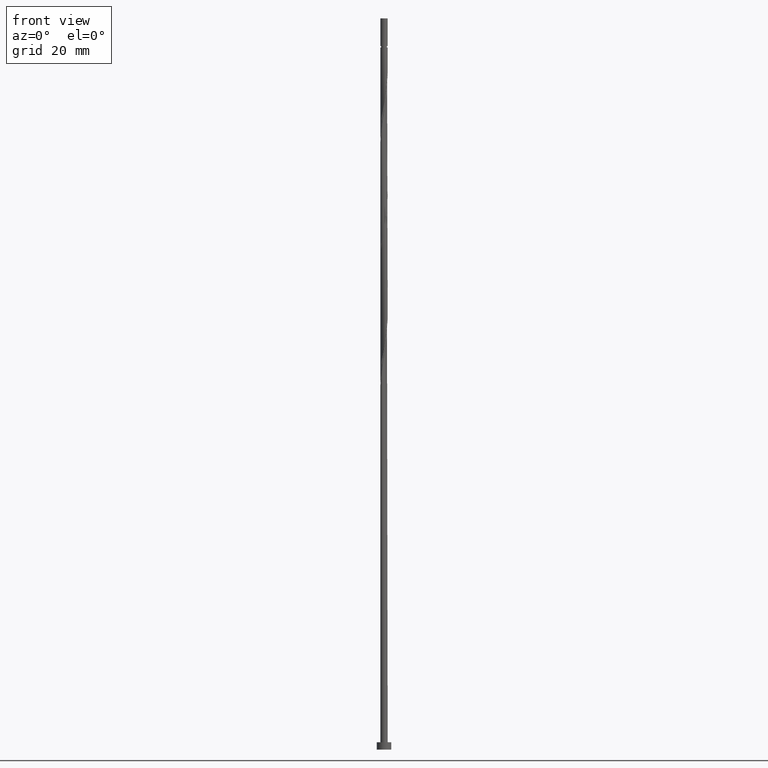
[diagram: clean part render]
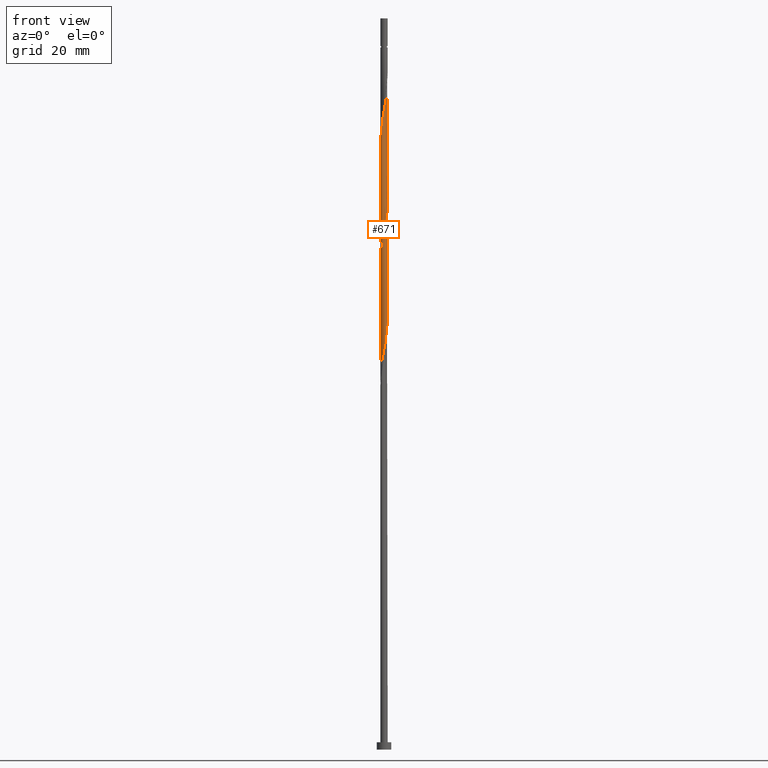
[diagram: same view with one face highlighted and labeled with its STEP entity id]
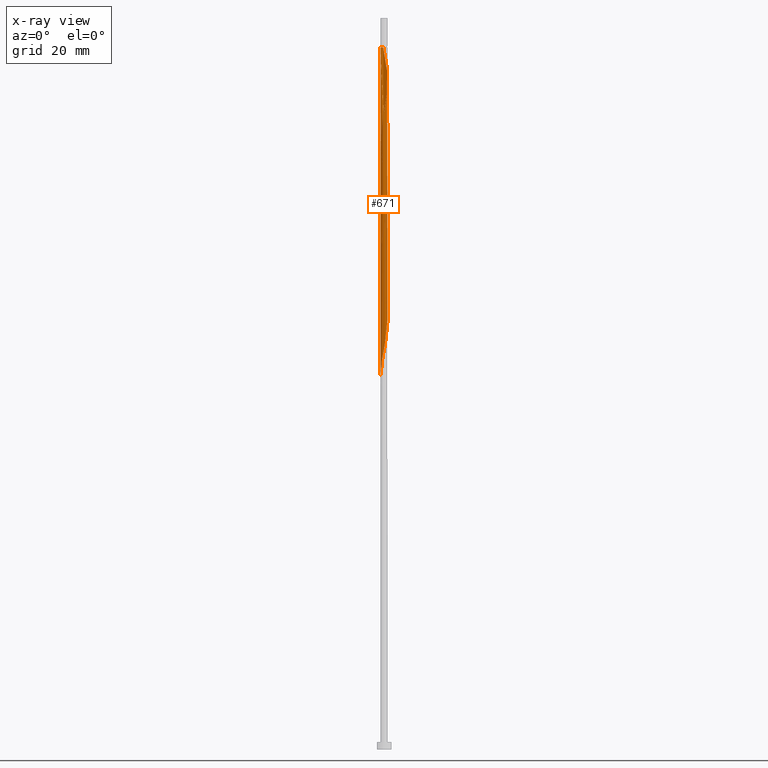
[diagram: x-ray of the same camera — body ghosted, the highlighted face saturated]
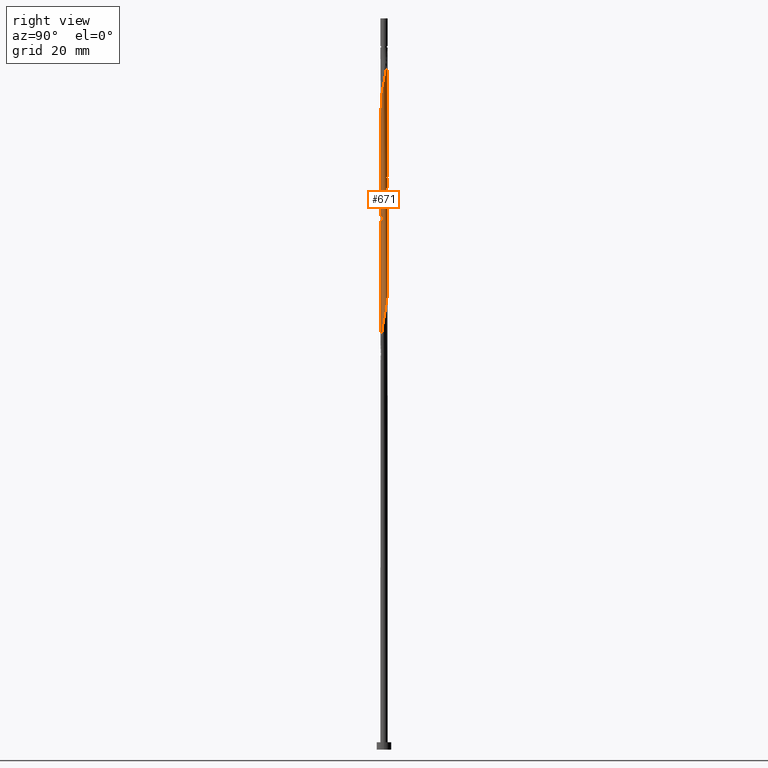
[diagram: same view with one face highlighted and labeled with its STEP entity id]
A machine part, front view. The second image highlights one B-rep face of the part: STEP entity #671.
The next image is the same camera in x-ray: the body ghosted, the highlighted face saturated — about 0% of this face is hidden behind the body in this view.
A second angle (right view) of the same face is appended — the face is thin or edge-on in the first view.
In plain terms, the highlighted cylindrical surface (bore or boss wall) has radius 1 mm, axis along (-0, -0, -1).
Its self-contained STEP definition (entity closure, byte-faithful):
#2 = CARTESIAN_POINT ( 'NONE',  ( -1.000000000000001554, -0.03074195165767192039, 101.5962653632798691 ) ) ;
#11 = CARTESIAN_POINT ( 'NONE',  ( 0.3176631206038582622, -0.9482036394194137685, 111.4806461311527670 ) ) ;
#15 = EDGE_CURVE ( 'NONE', #335, #730, #1408, .T. ) ;
#18 = CARTESIAN_POINT ( 'NONE',  ( -0.6623368793961430523, -0.7492061519980881545, 139.2584239089305242 ) ) ;
#35 = CARTESIAN_POINT ( 'NONE',  ( -0.7492061519980882656, -0.6623368793961422751, 169.8139794644861524 ) ) ;
#41 = CARTESIAN_POINT ( 'NONE',  ( 0.9063824962005089247, -0.4424964979548830502, 180.2306461311527812 ) ) ;
#42 = ORIENTED_EDGE ( 'NONE', *, *, #1500, .T. ) ;
#49 = DIRECTION ( 'NONE',  ( -1.000000000000000000, 0.000000000000000000, 0.000000000000000000 ) ) ;
#57 = CARTESIAN_POINT ( 'NONE',  ( -0.9800000000000015365, -0.1989974874213253087, 167.0362016867083526 ) ) ;
#84 = CARTESIAN_POINT ( 'NONE',  ( 0.9800000000000013145, -0.1989974874213255307, 150.3695350200416385 ) ) ;
#101 = VECTOR ( 'NONE', #841, 1000.000000000000000 ) ;
#109 =( BOUNDED_CURVE ( )  B_SPLINE_CURVE ( 2, ( #306, #1435, #57, #679, #1071, #417, #35, #1292, #814, #1558, #433, #794, #167, #174, #791, #1324, #653, #404, #1200, #646, #1045, #41, #1542, #412, #921, #534, #929, #1305, #180, #541, #1467, #1221, #695, #322, #1459, #1105, #1597, #1229, #1352 ),
 .UNSPECIFIED., .F., .T. ) 
 B_SPLINE_CURVE_WITH_KNOTS ( ( 3, 2, 2, 2, 2, 2, 2, 2, 2, 2, 2, 2, 2, 2, 2, 2, 2, 2, 2, 3 ),
 ( 0.5545317669814462391, 0.5625000000000000000, 0.5729166666666667407, 0.5833333333333332593, 0.5937500000000000000, 0.6041666666666667407, 0.6145833333333331483, 0.6249999999999998890, 0.6354166666666666297, 0.6458333333333331483, 0.6562499999999998890, 0.6666666666666666297, 0.6770833333333331483, 0.6874999999999998890, 0.6979166666666665186, 0.7083333333333330373, 0.7187499999999997780, 0.7291666666666665186, 0.7395833333333330373, 0.7499999999999997780 ),
 .UNSPECIFIED. ) 
 CURVE ( )  GEOMETRIC_REPRESENTATION_ITEM ( )  RATIONAL_B_SPLINE_CURVE ( ( 0.9062941362546808044, 0.9031415850403849976, 0.9090909090909604640, 0.9013135103398787207, 0.9090909090909604640, 0.9013135103398787207, 0.9090909090909604640, 0.9013135103398787207, 0.9090909090909604640, 0.9013135103398787207, 0.9090909090909604640, 0.9013135103398787207, 0.9090909090909604640, 0.9013135103398787207, 0.9090909090909604640, 0.9013135103398787207, 0.9090909090909604640, 0.9013135103398787207, 0.9090909090909604640, 0.9013135103398787207, 0.9090909090909604640, 0.9013135103398787207, 0.9090909090909604640, 0.9013135103398787207, 0.9090909090909604640, 0.9013135103398787207, 0.9090909090909604640, 0.9013135103398787207, 0.9090909090909604640, 0.9013135103398787207, 0.9090909090909604640, 0.9013135103398787207, 0.9090909090909604640, 0.9013135103398787207, 0.9090909090909604640, 0.9013135103398787207, 0.9090909090909604640, 0.9013135103398789427, 0.9090909090909602419 ) ) 
 REPRESENTATION_ITEM ( '' )  );
#110 = CARTESIAN_POINT ( 'NONE',  ( -1.000000000000001332, 2.168298744324822856E-16, 168.0997683419184057 ) ) ;
#122 = CARTESIAN_POINT ( 'NONE',  ( -0.4458594766673631415, -0.8951029700910995146, 107.3139794644861098 ) ) ;
#132 = CARTESIAN_POINT ( 'NONE',  ( 0.4458594766673636411, 0.8951029700910995146, 123.9806461311527670 ) ) ;
#141 = CARTESIAN_POINT ( 'NONE',  ( -0.7609717405145335345, -0.6620078475813440111, 138.5639794644861809 ) ) ;
#145 = CARTESIAN_POINT ( 'NONE',  ( 0.9482036394194139906, 0.3176631206038579291, 153.1473127978194384 ) ) ;
#150 = CARTESIAN_POINT ( 'NONE',  ( -1.000000000000001332, -8.448888210644999734E-16, 101.4331016752517201 ) ) ;
#161 = CARTESIAN_POINT ( 'NONE',  ( 1.000000000000001554, 5.981513777447786236E-16, 151.4331016752516916 ) ) ;
#166 = CARTESIAN_POINT ( 'NONE',  ( -0.1928297432528343625, 0.9900247826383178351, 160.7862016867082957 ) ) ;
#167 = CARTESIAN_POINT ( 'NONE',  ( -0.06142585173357875683, -0.9981116494354761448, 173.9806461311527812 ) ) ;
#171 = EDGE_CURVE ( 'NONE', #875, #1306, #109, .T. ) ;
#174 = CARTESIAN_POINT ( 'NONE',  ( 0.06997803978567683492, -1.006198516232634566, 174.6750905755972099 ) ) ;
#180 = CARTESIAN_POINT ( 'NONE',  ( 0.8951029700910999587, 0.4458594766673623089, 185.0917572422638671 ) ) ;
#183 = CYLINDRICAL_SURFACE ( 'NONE', #464, 1.000000000000000000 ) ;
#184 = CARTESIAN_POINT ( 'NONE',  ( -0.4424964979548827726, 0.9063824962005097019, 162.1750905755971814 ) ) ;
#187 = DIRECTION ( 'NONE',  ( -0.000000000000000000, -0.000000000000000000, -1.000000000000000000 ) ) ;
#196 = CARTESIAN_POINT ( 'NONE',  ( 0.5522521727681131143, -0.8336771183575214517, 146.2028683533750097 ) ) ;
#210 = ORIENTED_EDGE ( 'NONE', *, *, #15, .F. ) ;
#214 = CARTESIAN_POINT ( 'NONE',  ( 0.4424964979548826616, -0.9063824962005099239, 145.5084239089305527 ) ) ;
#237 = CARTESIAN_POINT ( 'NONE',  ( -0.4424964979548827726, 0.9063824962005097019, 128.8417572422638955 ) ) ;
#246 = CARTESIAN_POINT ( 'NONE',  ( 0.8336771183575214517, 0.5522521727681133363, 121.2028683533749955 ) ) ;
#253 = CARTESIAN_POINT ( 'NONE',  ( 0.8364044564148321870, -0.5637020182777526811, 114.9528683533749813 ) ) ;
#262 = CARTESIAN_POINT ( 'NONE',  ( -0.6623368793961430523, -0.7492061519980881545, 105.9250905755972099 ) ) ;
#269 = CARTESIAN_POINT ( 'NONE',  ( -0.9482036394194137685, -0.3176631206038584843, 103.1473127978194384 ) ) ;
#271 =( BOUNDED_CURVE ( )  B_SPLINE_CURVE ( 2, ( #719, #451, #84, #443, #1345, #952, #315, #1330, #196, #214, #1089, #457, #965, #1507, #1003, #483, #878, #742, #18, #141, #622, #499, #1132, #374, #1029, #516, #990, #1020, #605, #1497, #754, #1517, #509, #237, #904, #1612, #1012, #775, #597, #492, #132, #1525, #366, #386, #246, #895, #885, #1151, #615, #1250, #1490, #1389, #1282, #253, #1268, #396, #729, #1409, #11, #1125, #1401, #1381, #872, #358, #122, #1372, #262, #763, #1142, #1275, #269, #1623, #1260, #2, #150 ),
 .UNSPECIFIED., .F., .T. ) 
 B_SPLINE_CURVE_WITH_KNOTS ( ( 3, 2, 2, 2, 2, 2, 2, 2, 2, 2, 2, 2, 2, 2, 2, 2, 2, 2, 2, 2, 2, 2, 2, 2, 2, 2, 2, 2, 2, 2, 2, 2, 2, 2, 2, 2, 2, 3 ),
 ( 0.5545317669814464612, 0.5625000000000000000, 0.5729166666666666297, 0.5833333333333333703, 0.5937500000000000000, 0.6041666666666666297, 0.6145833333333333703, 0.6250000000000000000, 0.6354166666666666297, 0.6458333333333333703, 0.6562500000000000000, 0.6666666666666666297, 0.6770833333333333703, 0.6875000000000000000, 0.6979166666666666297, 0.7083333333333333703, 0.7187500000000000000, 0.7291666666666666297, 0.7395833333333333703, 0.7500000000000000000, 0.7604166666666666297, 0.7708333333333333703, 0.7812500000000000000, 0.7916666666666666297, 0.8020833333333333703, 0.8125000000000000000, 0.8229166666666666297, 0.8333333333333333703, 0.8437500000000000000, 0.8541666666666666297, 0.8645833333333333703, 0.8750000000000000000, 0.8854166666666666297, 0.8958333333333333703, 0.9062500000000000000, 0.9166666666666666297, 0.9270833333333333703, 0.9295317669814463502 ),
 .UNSPECIFIED. ) 
 CURVE ( )  GEOMETRIC_REPRESENTATION_ITEM ( )  RATIONAL_B_SPLINE_CURVE ( ( 0.9062941362546816926, 0.9031415850403861079, 0.9090909090909616852, 0.9013135103398798309, 0.9090909090909616852, 0.9013135103398798309, 0.9090909090909616852, 0.9013135103398798309, 0.9090909090909616852, 0.9013135103398798309, 0.9090909090909616852, 0.9013135103398798309, 0.9090909090909616852, 0.9013135103398798309, 0.9090909090909616852, 0.9013135103398798309, 0.9090909090909616852, 0.9013135103398798309, 0.9090909090909616852, 0.9013135103398798309, 0.9090909090909616852, 0.9013135103398798309, 0.9090909090909616852, 0.9013135103398798309, 0.9090909090909616852, 0.9013135103398798309, 0.9090909090909616852, 0.9013135103398798309, 0.9090909090909616852, 0.9013135103398798309, 0.9090909090909616852, 0.9013135103398798309, 0.9090909090909616852, 0.9013135103398798309, 0.9090909090909616852, 0.9013135103398798309, 0.9090909090909616852, 0.9013135103398798309, 0.9090909090909616852, 0.9013135103398798309, 0.9090909090909616852, 0.9013135103398798309, 0.9090909090909616852, 0.9013135103398798309, 0.9090909090909616852, 0.9013135103398798309, 0.9090909090909616852, 0.9013135103398798309, 0.9090909090909616852, 0.9013135103398798309, 0.9090909090909616852, 0.9013135103398798309, 0.9090909090909616852, 0.9013135103398798309, 0.9090909090909616852, 0.9013135103398798309, 0.9090909090909616852, 0.9013135103398798309, 0.9090909090909616852, 0.9013135103398798309, 0.9090909090909616852, 0.9013135103398798309, 0.9090909090909616852, 0.9013135103398798309, 0.9090909090909616852, 0.9013135103398798309, 0.9090909090909616852, 0.9013135103398798309, 0.9090909090909616852, 0.9013135103398798309, 0.9090909090909616852, 0.9013135103398798309, 0.9090909090909616852, 0.9072628343904552972, 0.9062941362546818036 ) ) 
 REPRESENTATION_ITEM ( '' )  );
#272 = CARTESIAN_POINT ( 'NONE',  ( 0.7609717405145336455, 0.6620078475813440111, 155.2306461311527812 ) ) ;
#285 = FACE_OUTER_BOUND ( 'NONE', #1298, .T. ) ;
#290 = CARTESIAN_POINT ( 'NONE',  ( -0.8951029700910995146, 0.4458594766673630305, 165.6473127978194668 ) ) ;
#306 = CARTESIAN_POINT ( 'NONE',  ( -1.000000000000001110, 8.598426055081204793E-17, 165.9726350314982426 ) ) ;
#313 = CARTESIAN_POINT ( 'NONE',  ( -0.6620078475813443442, 0.7609717405145332014, 163.5639794644860956 ) ) ;
#315 = CARTESIAN_POINT ( 'NONE',  ( 0.7492061519980881545, -0.6623368793961431633, 147.5917572422638671 ) ) ;
#322 = CARTESIAN_POINT ( 'NONE',  ( 0.4424964979548831057, 0.9063824962005089247, 188.5639794644860388 ) ) ;
#331 = CARTESIAN_POINT ( 'NONE',  ( 0.5637020182777527921, 0.8364044564148321870, 156.6195350200416385 ) ) ;
#335 = VERTEX_POINT ( 'NONE', #110 ) ;
#353 = VERTEX_POINT ( 'NONE', #863 ) ;
#358 = CARTESIAN_POINT ( 'NONE',  ( -0.3280169350569739906, -0.9538014837673675084, 108.0084239089305527 ) ) ;
#366 = CARTESIAN_POINT ( 'NONE',  ( 0.6623368793961431633, 0.7492061519980880435, 122.5917572422638671 ) ) ;
#374 = CARTESIAN_POINT ( 'NONE',  ( -0.9900247826383180572, -0.1928297432528340571, 135.7862016867083241 ) ) ;
#382 = CARTESIAN_POINT ( 'NONE',  ( 0.9900247826383180572, 0.1928297432528337241, 152.4528683533749813 ) ) ;
#386 = CARTESIAN_POINT ( 'NONE',  ( 0.7609717405145336455, 0.6620078475813440111, 121.8973127978194526 ) ) ;
#387 = CIRCLE ( 'NONE', #1310, 0.9999999999999887867 ) ;
#396 = CARTESIAN_POINT ( 'NONE',  ( 0.6620078475813440111, -0.7609717405145335345, 113.5639794644861098 ) ) ;
#404 = CARTESIAN_POINT ( 'NONE',  ( 0.5637020182777515709, -0.8364044564148324090, 177.4528683533749813 ) ) ;
#412 = CARTESIAN_POINT ( 'NONE',  ( 0.9900247826383173910, -0.1928297432528348065, 181.6195350200416669 ) ) ;
#417 = CARTESIAN_POINT ( 'NONE',  ( -0.8364044564148321870, -0.5637020182777517929, 169.1195350200416669 ) ) ;
#422 = CARTESIAN_POINT ( 'NONE',  ( 0.000000000000000000, 0.000000000000000000, 200.0000000000000000 ) ) ;
#433 = CARTESIAN_POINT ( 'NONE',  ( -0.3176631206038588728, -0.9482036394194134354, 172.5917572422639239 ) ) ;
#443 = CARTESIAN_POINT ( 'NONE',  ( 0.9538014837673671753, -0.3280169350569742681, 149.6750905755972099 ) ) ;
#451 = CARTESIAN_POINT ( 'NONE',  ( 1.000000000000001110, -0.1005037815259244849, 150.8996753060624769 ) ) ;
#457 = CARTESIAN_POINT ( 'NONE',  ( 0.1928297432528337796, -0.9900247826383180572, 144.1195350200416669 ) ) ;
#464 = AXIS2_PLACEMENT_3D ( 'NONE', #422, #911, #49 ) ;
#465 = CARTESIAN_POINT ( 'NONE',  ( -1.000000000000001110, 8.598426055081204793E-17, 165.9726350314982426 ) ) ;
#476 = ORIENTED_EDGE ( 'NONE', *, *, #556, .F. ) ;
#483 = CARTESIAN_POINT ( 'NONE',  ( -0.3280169350569739906, -0.9538014837673675084, 141.3417572422638955 ) ) ;
#492 = CARTESIAN_POINT ( 'NONE',  ( 0.3280169350569743791, 0.9538014837673669533, 124.6750905755972099 ) ) ;
#499 = CARTESIAN_POINT ( 'NONE',  ( -0.9063824962005099239, -0.4424964979548826616, 137.1750905755972383 ) ) ;
#509 = CARTESIAN_POINT ( 'NONE',  ( -0.5522521727681137804, 0.8336771183575213406, 129.5362016867083241 ) ) ;
#516 = CARTESIAN_POINT ( 'NONE',  ( -1.006198516232635232, 0.06997803978567748717, 134.3973127978194668 ) ) ;
#534 = CARTESIAN_POINT ( 'NONE',  ( 1.006198516232634566, 0.06997803978567632144, 183.0084239089304958 ) ) ;
#540 = CARTESIAN_POINT ( 'NONE',  ( -0.9800000000000013145, 0.1989974874213254474, 167.0362016867083526 ) ) ;
#541 = CARTESIAN_POINT ( 'NONE',  ( 0.8364044564148324090, 0.5637020182777515709, 185.7862016867082389 ) ) ;
#554 = CARTESIAN_POINT ( 'NONE',  ( -0.9999999999999887867, 0.000000000000000000, 192.0362016867083526 ) ) ;
#556 = EDGE_CURVE ( 'NONE', #730, #1245, #271, .T. ) ;
#594 = CARTESIAN_POINT ( 'NONE',  ( 0.000000000000000000, 0.000000000000000000, 192.0362016867083526 ) ) ;
#597 = CARTESIAN_POINT ( 'NONE',  ( 0.1989974874213255862, 0.9800000000000013145, 125.3695350200416669 ) ) ;
#605 = CARTESIAN_POINT ( 'NONE',  ( -0.8951029700910995146, 0.4458594766673630305, 132.3139794644861240 ) ) ;
#615 = CARTESIAN_POINT ( 'NONE',  ( 0.9981116494354765889, 0.06142585173357809070, 118.4250905755972383 ) ) ;
#622 = CARTESIAN_POINT ( 'NONE',  ( -0.8336771183575213406, -0.5522521727681135584, 137.8695350200416385 ) ) ;
#629 = CARTESIAN_POINT ( 'NONE',  ( 0.9063824962005101460, 0.4424964979548822730, 153.8417572422638955 ) ) ;
#646 = CARTESIAN_POINT ( 'NONE',  ( 0.7609717405145327573, -0.6620078475813443442, 178.8417572422638102 ) ) ;
#653 = CARTESIAN_POINT ( 'NONE',  ( 0.4458594766673625309, -0.8951029700910999587, 176.7584239089305811 ) ) ;
#671 = ADVANCED_FACE ( 'NONE', ( #285 ), #183, .T. ) ;
#679 = CARTESIAN_POINT ( 'NONE',  ( -0.9538014837673672863, -0.3280169350569731024, 167.7306461311527528 ) ) ;
#695 = CARTESIAN_POINT ( 'NONE',  ( 0.5522521727681136694, 0.8336771183575210076, 187.8695350200416669 ) ) ;
#719 = CARTESIAN_POINT ( 'NONE',  ( 1.000000000000001554, 5.981513777447786236E-16, 151.4331016752516916 ) ) ;
#729 = CARTESIAN_POINT ( 'NONE',  ( 0.5522521727681131143, -0.8336771183575214517, 112.8695350200416527 ) ) ;
#730 = VERTEX_POINT ( 'NONE', #1043 ) ;
#742 = CARTESIAN_POINT ( 'NONE',  ( -0.5637020182777524591, -0.8364044564148325200, 139.9528683533750097 ) ) ;
#754 = CARTESIAN_POINT ( 'NONE',  ( -0.7492061519980883766, 0.6623368793961428302, 130.9250905755972383 ) ) ;
#763 = CARTESIAN_POINT ( 'NONE',  ( -0.7609717405145335345, -0.6620078475813440111, 105.2306461311527954 ) ) ;
#771 = CARTESIAN_POINT ( 'NONE',  ( 0.8336771183575214517, 0.5522521727681133363, 154.5362016867083810 ) ) ;
#775 = CARTESIAN_POINT ( 'NONE',  ( 0.06997803978567723737, 1.006198516232635232, 126.0639794644860814 ) ) ;
#791 = CARTESIAN_POINT ( 'NONE',  ( 0.1989974874213252254, -0.9800000000000015365, 175.3695350200416954 ) ) ;
#794 = CARTESIAN_POINT ( 'NONE',  ( -0.1928297432528343625, -0.9900247826383176131, 173.2862016867082957 ) ) ;
#802 = CARTESIAN_POINT ( 'NONE',  ( -0.5522521727681137804, 0.8336771183575213406, 162.8695350200416669 ) ) ;
#814 = CARTESIAN_POINT ( 'NONE',  ( -0.5522521727681136694, -0.8336771183575211186, 171.2028683533750097 ) ) ;
#821 = CARTESIAN_POINT ( 'NONE',  ( -0.3176631206038585398, 0.9482036394194137685, 161.4806461311528096 ) ) ;
#832 = CARTESIAN_POINT ( 'NONE',  ( 0.1989974874213255862, 0.9800000000000013145, 158.7028683533750097 ) ) ;
#837 = DIRECTION ( 'NONE',  ( -0.000000000000000000, -0.000000000000000000, -1.000000000000000000 ) ) ;
#841 = DIRECTION ( 'NONE',  ( -0.000000000000000000, -0.000000000000000000, -1.000000000000000000 ) ) ;
#860 = CARTESIAN_POINT ( 'NONE',  ( 1.000000000000000000, 1.224646799147353207E-16, 200.0000000000000000 ) ) ;
#863 = CARTESIAN_POINT ( 'NONE',  ( 1.000000000000000000, 1.224646799147353207E-16, 192.0362016867083526 ) ) ;
#871 = EDGE_CURVE ( 'NONE', #1067, #335, #1450, .T. ) ;
#872 = CARTESIAN_POINT ( 'NONE',  ( -0.1989974874213254752, -0.9800000000000013145, 108.7028683533750240 ) ) ;
#875 = VERTEX_POINT ( 'NONE', #465 ) ;
#878 = CARTESIAN_POINT ( 'NONE',  ( -0.4458594766673631415, -0.8951029700910995146, 140.6473127978194100 ) ) ;
#885 = CARTESIAN_POINT ( 'NONE',  ( 0.9482036394194139906, 0.3176631206038579291, 119.8139794644861240 ) ) ;
#895 = CARTESIAN_POINT ( 'NONE',  ( 0.9063824962005101460, 0.4424964979548822730, 120.5084239089305669 ) ) ;
#904 = CARTESIAN_POINT ( 'NONE',  ( -0.3176631206038585398, 0.9482036394194137685, 128.1473127978194384 ) ) ;
#911 = DIRECTION ( 'NONE',  ( -0.000000000000000000, -0.000000000000000000, -1.000000000000000000 ) ) ;
#921 = CARTESIAN_POINT ( 'NONE',  ( 0.9981116494354761448, -0.06142585173357926337, 182.3139794644861240 ) ) ;
#927 = CARTESIAN_POINT ( 'NONE',  ( -0.8364044564148325200, 0.5637020182777524591, 164.9528683533750382 ) ) ;
#929 = CARTESIAN_POINT ( 'NONE',  ( 0.9800000000000015365, 0.1989974874213251421, 183.7028683533750097 ) ) ;
#948 = EDGE_CURVE ( 'NONE', #353, #730, #1123, .T. ) ;
#950 = CARTESIAN_POINT ( 'NONE',  ( -0.9538014837673675084, 0.3280169350569736020, 166.3417572422639239 ) ) ;
#952 = CARTESIAN_POINT ( 'NONE',  ( 0.8364044564148321870, -0.5637020182777526811, 148.2862016867082957 ) ) ;
#962 = ORIENTED_EDGE ( 'NONE', *, *, #171, .F. ) ;
#965 = CARTESIAN_POINT ( 'NONE',  ( 0.06142585173357814621, -0.9981116494354765889, 143.4250905755972099 ) ) ;
#981 = CARTESIAN_POINT ( 'NONE',  ( 0.3280169350569743791, 0.9538014837673669533, 158.0084239089304958 ) ) ;
#990 = CARTESIAN_POINT ( 'NONE',  ( -0.9800000000000013145, 0.1989974874213254474, 133.7028683533750382 ) ) ;
#1003 = CARTESIAN_POINT ( 'NONE',  ( -0.1989974874213254752, -0.9800000000000013145, 142.0362016867083526 ) ) ;
#1012 = CARTESIAN_POINT ( 'NONE',  ( -0.06142585173357854172, 0.9981116494354765889, 126.7584239089305527 ) ) ;
#1020 = CARTESIAN_POINT ( 'NONE',  ( -0.9538014837673675084, 0.3280169350569736020, 133.0084239089305242 ) ) ;
#1026 = DIRECTION ( 'NONE',  ( -0.000000000000000000, -0.000000000000000000, -1.000000000000000000 ) ) ;
#1029 = CARTESIAN_POINT ( 'NONE',  ( -0.9981116494354763669, -0.06142585173357843070, 135.0917572422639239 ) ) ;
#1043 = CARTESIAN_POINT ( 'NONE',  ( 1.000000000000001554, 5.981513777447787222E-16, 151.4331016752517201 ) ) ;
#1045 = CARTESIAN_POINT ( 'NONE',  ( 0.8336771183575207855, -0.5522521727681138914, 179.5362016867083810 ) ) ;
#1052 = CARTESIAN_POINT ( 'NONE',  ( -1.000000000000001110, 0.1005037815259249012, 167.5663419727291341 ) ) ;
#1061 = CARTESIAN_POINT ( 'NONE',  ( -0.7492061519980883766, 0.6623368793961428302, 164.2584239089305811 ) ) ;
#1067 = VERTEX_POINT ( 'NONE', #554 ) ;
#1071 = CARTESIAN_POINT ( 'NONE',  ( -0.8951029700910997366, -0.4458594766673626419, 168.4250905755971814 ) ) ;
#1073 = EDGE_CURVE ( 'NONE', #875, #1245, #1082, .T. ) ;
#1075 = ORIENTED_EDGE ( 'NONE', *, *, #871, .F. ) ;
#1082 = LINE ( 'NONE', #1436, #1492 ) ;
#1089 = CARTESIAN_POINT ( 'NONE',  ( 0.3176631206038582622, -0.9482036394194137685, 144.8139794644861240 ) ) ;
#1105 = CARTESIAN_POINT ( 'NONE',  ( 0.1928297432528348621, 0.9900247826383173910, 189.9528683533750097 ) ) ;
#1123 = LINE ( 'NONE', #860, #1596 ) ;
#1125 = CARTESIAN_POINT ( 'NONE',  ( 0.1928297432528337796, -0.9900247826383180572, 110.7862016867083241 ) ) ;
#1132 = CARTESIAN_POINT ( 'NONE',  ( -0.9482036394194137685, -0.3176631206038584843, 136.4806461311527528 ) ) ;
#1142 = CARTESIAN_POINT ( 'NONE',  ( -0.8336771183575213406, -0.5522521727681135584, 104.5362016867083383 ) ) ;
#1145 = CARTESIAN_POINT ( 'NONE',  ( 1.000000000000001998, 0.03074195165767024465, 151.5962653632799118 ) ) ;
#1151 = CARTESIAN_POINT ( 'NONE',  ( 0.9900247826383180572, 0.1928297432528337241, 119.1195350200416812 ) ) ;
#1200 = CARTESIAN_POINT ( 'NONE',  ( 0.6623368793961422751, -0.7492061519980883766, 178.1473127978194668 ) ) ;
#1212 = CARTESIAN_POINT ( 'NONE',  ( -0.06142585173357854172, 0.9981116494354765889, 160.0917572422638386 ) ) ;
#1220 = CARTESIAN_POINT ( 'NONE',  ( 0.06997803978567723737, 1.006198516232635232, 159.3973127978194668 ) ) ;
#1221 = CARTESIAN_POINT ( 'NONE',  ( 0.6620078475813448993, 0.7609717405145322022, 187.1750905755971814 ) ) ;
#1228 = CARTESIAN_POINT ( 'NONE',  ( -1.000000000000000000, 0.000000000000000000, 200.0000000000000000 ) ) ;
#1229 = CARTESIAN_POINT ( 'NONE',  ( -0.06997803978567339322, 1.006198516232634566, 191.3417572422638102 ) ) ;
#1245 = VERTEX_POINT ( 'NONE', #1315 ) ;
#1250 = CARTESIAN_POINT ( 'NONE',  ( 1.006198516232635232, -0.06997803978567759819, 117.7306461311527670 ) ) ;
#1260 = CARTESIAN_POINT ( 'NONE',  ( -0.9981116494354763669, -0.06142585173357843070, 101.7584239089305385 ) ) ;
#1268 = CARTESIAN_POINT ( 'NONE',  ( 0.7492061519980881545, -0.6623368793961431633, 114.2584239089305527 ) ) ;
#1275 = CARTESIAN_POINT ( 'NONE',  ( -0.9063824962005099239, -0.4424964979548826616, 103.8417572422638955 ) ) ;
#1282 = CARTESIAN_POINT ( 'NONE',  ( 0.8951029700910995146, -0.4458594766673636411, 115.6473127978194526 ) ) ;
#1285 = CARTESIAN_POINT ( 'NONE',  ( 0.9981116494354765889, 0.06142585173357809070, 151.7584239089305811 ) ) ;
#1292 = CARTESIAN_POINT ( 'NONE',  ( -0.6620078475813443442, -0.7609717405145327573, 170.5084239089304958 ) ) ;
#1298 = EDGE_LOOP ( 'NONE', ( #1075, #42, #962, #1560, #476, #1608, #1553, #210 ) ) ;
#1305 = CARTESIAN_POINT ( 'NONE',  ( 0.9538014837673672863, 0.3280169350569731024, 184.3973127978194100 ) ) ;
#1306 = VERTEX_POINT ( 'NONE', #1407 ) ;
#1310 = AXIS2_PLACEMENT_3D ( 'NONE', #594, #837, #1581 ) ;
#1315 = CARTESIAN_POINT ( 'NONE',  ( -1.000000000000001332, -8.448888210644999734E-16, 101.4331016752517343 ) ) ;
#1324 = CARTESIAN_POINT ( 'NONE',  ( 0.3280169350569731024, -0.9538014837673672863, 176.0639794644860956 ) ) ;
#1330 = CARTESIAN_POINT ( 'NONE',  ( 0.6620078475813440111, -0.7609717405145335345, 146.8973127978194100 ) ) ;
#1345 = CARTESIAN_POINT ( 'NONE',  ( 0.8951029700910995146, -0.4458594766673636411, 148.9806461311528096 ) ) ;
#1352 = CARTESIAN_POINT ( 'NONE',  ( -0.1989974874213563949, 0.9800000000002645484, 192.0362016867083526 ) ) ;
#1372 = CARTESIAN_POINT ( 'NONE',  ( -0.5637020182777524591, -0.8364044564148325200, 106.6195350200416812 ) ) ;
#1381 = CARTESIAN_POINT ( 'NONE',  ( -0.06997803978567757044, -1.006198516232635232, 109.3973127978194668 ) ) ;
#1389 = CARTESIAN_POINT ( 'NONE',  ( 0.9538014837673671753, -0.3280169350569742681, 116.3417572422638955 ) ) ;
#1401 = CARTESIAN_POINT ( 'NONE',  ( 0.06142585173357814621, -0.9981116494354765889, 110.0917572422639239 ) ) ;
#1404 = CARTESIAN_POINT ( 'NONE',  ( 0.6623368793961431633, 0.7492061519980880435, 155.9250905755972383 ) ) ;
#1407 = CARTESIAN_POINT ( 'NONE',  ( -0.1989974874213563949, 0.9800000000002645484, 192.0362016867083526 ) ) ;
#1408 =( BOUNDED_CURVE ( )  B_SPLINE_CURVE ( 2, ( #1556, #1052, #540, #950, #290, #927, #1061, #313, #802, #184, #821, #166, #1212, #1220, #832, #981, #1585, #331, #1404, #272, #771, #629, #145, #382, #1285, #1145, #161 ),
 .UNSPECIFIED., .F., .T. ) 
 B_SPLINE_CURVE_WITH_KNOTS ( ( 3, 2, 2, 2, 2, 2, 2, 2, 2, 2, 2, 2, 2, 3 ),
 ( 0.4295317669814464612, 0.4375000000000000000, 0.4479166666666666852, 0.4583333333333333148, 0.4687500000000000000, 0.4791666666666666852, 0.4895833333333333148, 0.5000000000000000000, 0.5104166666666666297, 0.5208333333333333703, 0.5312500000000000000, 0.5416666666666666297, 0.5520833333333333703, 0.5545317669814464612 ),
 .UNSPECIFIED. ) 
 CURVE ( )  GEOMETRIC_REPRESENTATION_ITEM ( )  RATIONAL_B_SPLINE_CURVE ( ( 0.9062941362546818036, 0.9031415850403863299, 0.9090909090909616852, 0.9013135103398798309, 0.9090909090909616852, 0.9013135103398798309, 0.9090909090909616852, 0.9013135103398798309, 0.9090909090909616852, 0.9013135103398798309, 0.9090909090909616852, 0.9013135103398798309, 0.9090909090909616852, 0.9013135103398798309, 0.9090909090909616852, 0.9013135103398798309, 0.9090909090909616852, 0.9013135103398798309, 0.9090909090909616852, 0.9013135103398798309, 0.9090909090909616852, 0.9013135103398798309, 0.9090909090909616852, 0.9013135103398798309, 0.9090909090909616852, 0.9072628343904551862, 0.9062941362546816926 ) ) 
 REPRESENTATION_ITEM ( '' )  );
#1409 = CARTESIAN_POINT ( 'NONE',  ( 0.4424964979548826616, -0.9063824962005099239, 112.1750905755971957 ) ) ;
#1435 = CARTESIAN_POINT ( 'NONE',  ( -1.000000000000000888, -0.1005037815259223338, 166.5060614006875426 ) ) ;
#1436 = CARTESIAN_POINT ( 'NONE',  ( -1.000000000000000000, 0.000000000000000000, 200.0000000000000000 ) ) ;
#1450 = LINE ( 'NONE', #1228, #101 ) ;
#1459 = CARTESIAN_POINT ( 'NONE',  ( 0.3176631206038589839, 0.9482036394194134354, 189.2584239089305811 ) ) ;
#1467 = CARTESIAN_POINT ( 'NONE',  ( 0.7492061519980887097, 0.6623368793961419421, 186.4806461311527812 ) ) ;
#1490 = CARTESIAN_POINT ( 'NONE',  ( 0.9800000000000013145, -0.1989974874213255307, 117.0362016867083383 ) ) ;
#1492 = VECTOR ( 'NONE', #187, 1000.000000000000000 ) ;
#1497 = CARTESIAN_POINT ( 'NONE',  ( -0.8364044564148325200, 0.5637020182777524591, 131.6195350200416669 ) ) ;
#1500 = EDGE_CURVE ( 'NONE', #1067, #1306, #387, .T. ) ;
#1507 = CARTESIAN_POINT ( 'NONE',  ( -0.06997803978567757044, -1.006198516232635232, 142.7306461311527528 ) ) ;
#1517 = CARTESIAN_POINT ( 'NONE',  ( -0.6620078475813443442, 0.7609717405145332014, 130.2306461311527528 ) ) ;
#1525 = CARTESIAN_POINT ( 'NONE',  ( 0.5637020182777527921, 0.8364044564148321870, 123.2862016867083241 ) ) ;
#1542 = CARTESIAN_POINT ( 'NONE',  ( 0.9482036394194134354, -0.3176631206038589839, 180.9250905755972099 ) ) ;
#1553 = ORIENTED_EDGE ( 'NONE', *, *, #948, .T. ) ;
#1556 = CARTESIAN_POINT ( 'NONE',  ( -1.000000000000001332, 2.168298744324822856E-16, 168.0997683419184341 ) ) ;
#1558 = CARTESIAN_POINT ( 'NONE',  ( -0.4424964979548830502, -0.9063824962005091468, 171.8973127978194100 ) ) ;
#1560 = ORIENTED_EDGE ( 'NONE', *, *, #1073, .T. ) ;
#1581 = DIRECTION ( 'NONE',  ( -1.000000000000000000, 0.000000000000000000, 0.000000000000000000 ) ) ;
#1585 = CARTESIAN_POINT ( 'NONE',  ( 0.4458594766673636411, 0.8951029700910995146, 157.3139794644860672 ) ) ;
#1596 = VECTOR ( 'NONE', #1026, 1000.000000000000000 ) ;
#1597 = CARTESIAN_POINT ( 'NONE',  ( 0.06142585173357931194, 0.9981116494354761448, 190.6473127978194668 ) ) ;
#1608 = ORIENTED_EDGE ( 'NONE', *, *, #948, .F. ) ;
#1612 = CARTESIAN_POINT ( 'NONE',  ( -0.1928297432528343625, 0.9900247826383178351, 127.4528683533749955 ) ) ;
#1623 = CARTESIAN_POINT ( 'NONE',  ( -0.9900247826383180572, -0.1928297432528340571, 102.4528683533749955 ) ) ;